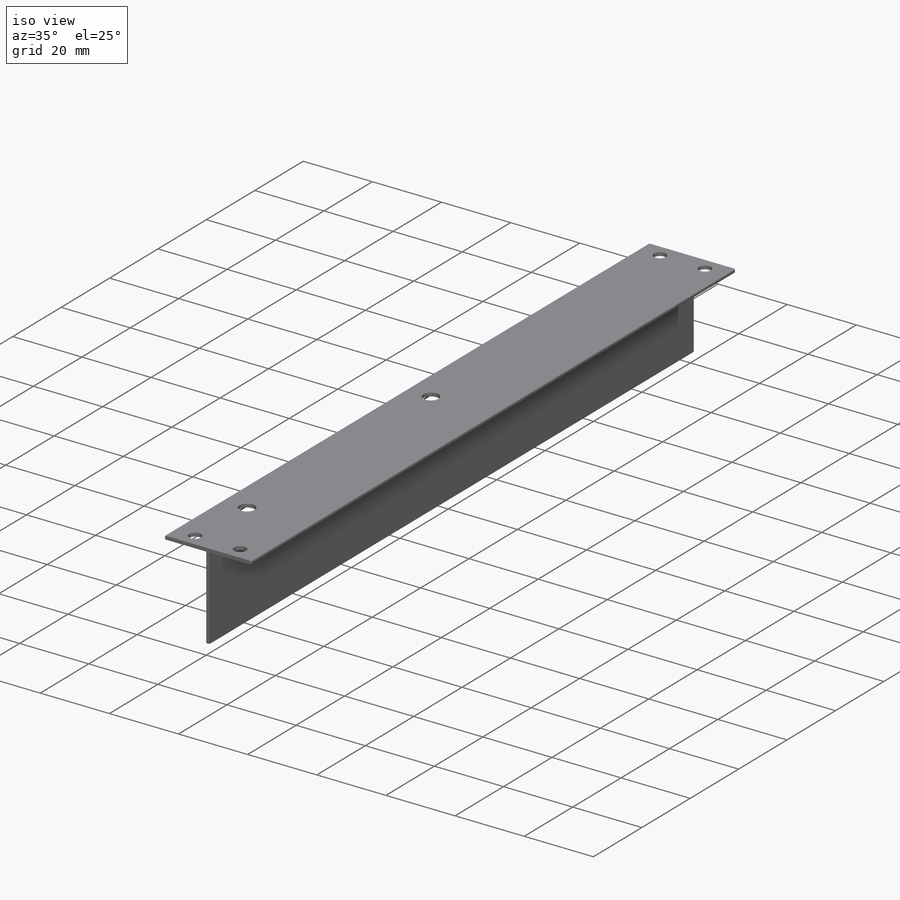
[diagram: iso view]
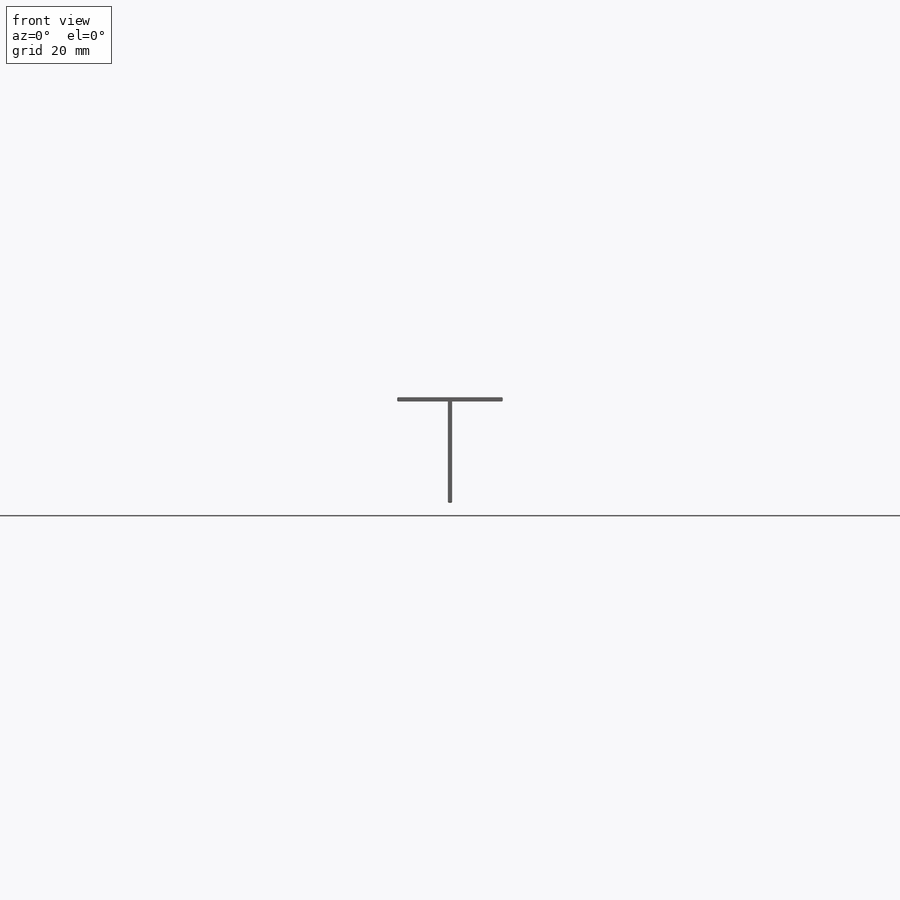
[diagram: front view]
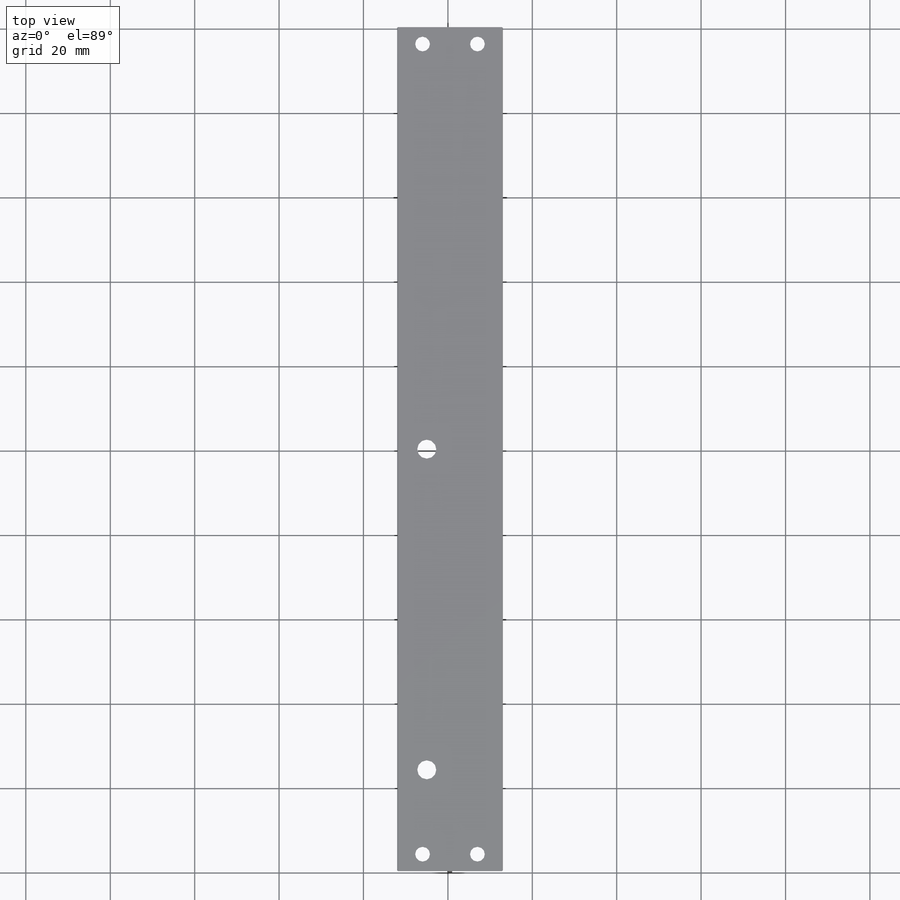
[diagram: top view]
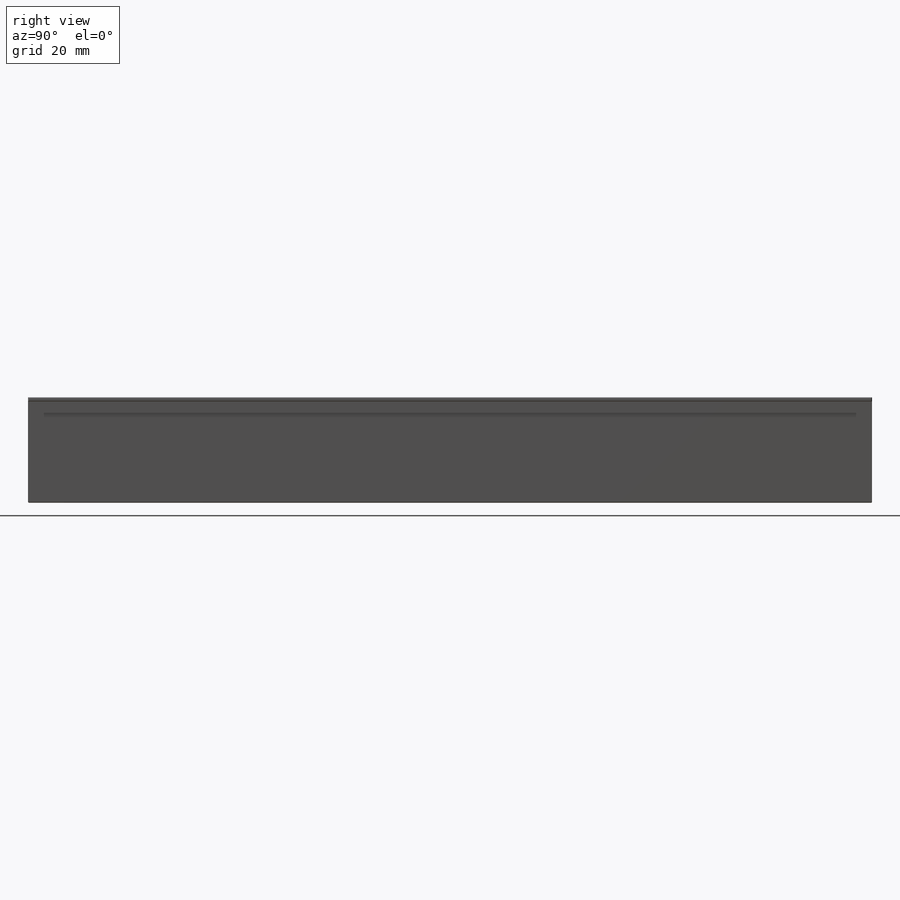
[diagram: right view]
SOLIDWORKS PART (.sldprt)
format: sldprt  version: not decoded by parser v0  size: 437,760 bytes
history: native  units: mm
features: sketch x9, hole x3, material x1, extrude x1, fillet x1, pattern_linear x1 (+13 scaffold rows collapsed)
feature tree (29):
  scaffold x13  (default folders/planes/origin — collapsed)
  material  "Material <not specified>"
  sketch  "Sketch1"  dims[D1=24.0mm]
  extrude  "Extrude1"  Depth=200mm
  sketch  "Sketch3"  dims[D1=4.0mm]
  fillet  "Fillet1"  Radius=0.25mm
  hole  "Ø3.5 (3.5) Diameter Hole1"  Diameter=3.5mm Depth=1mm
  sketch  "3DSketch1"
  sketch  "Sketch5"  dims[hole-wizard template sketch: 60 standard entries collapsed; hole parameters kept: c18.Thru Hole Depth=1.0mm]
  sketch  "Sketch6"
  hole  "Ø4.5 (4.5) Diameter Hole1"  Diameter=4.5mm Depth=1mm
  sketch  "3DSketch3"
  sketch  "Sketch9"  dims[hole-wizard template sketch: 47 standard entries collapsed; hole parameters kept: c15.Hole Depth=1.0mm c15.D3=~14.816244mm c15.Drill Angle=118.0deg]
  hole  "Ø4.5 (4.5) Diameter Hole2"  Diameter=4.5mm Depth=1mm
  sketch  "3DSketch4"
  sketch  "Sketch10"  dims[hole-wizard template sketch: 47 standard entries collapsed; hole parameters kept: c15.Hole Depth=1.0mm c15.D3=~14.816244mm c15.Drill Angle=118.0deg]
  pattern_linear  "LPattern1"  Count1=4 Count2=1 Spacing1=38.4mm Spacing2=50mm
decode coverage: 11 of 15 modeling features carry decoded parameters
note: ~ marks probable driven/reference dimensions
note: suppression state not decoded; provenance and decode notes live in map.json
